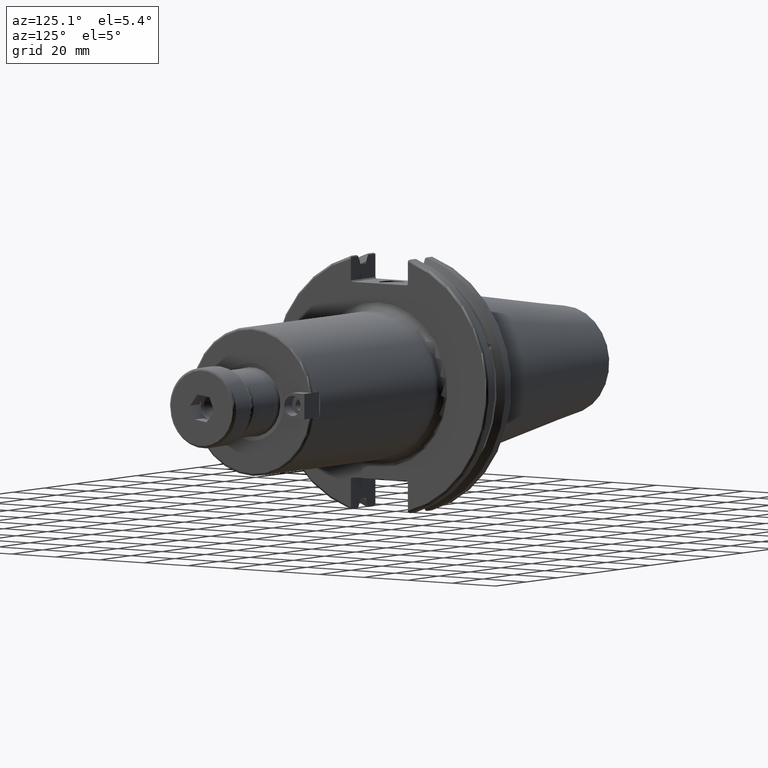
[diagram: clean part render]
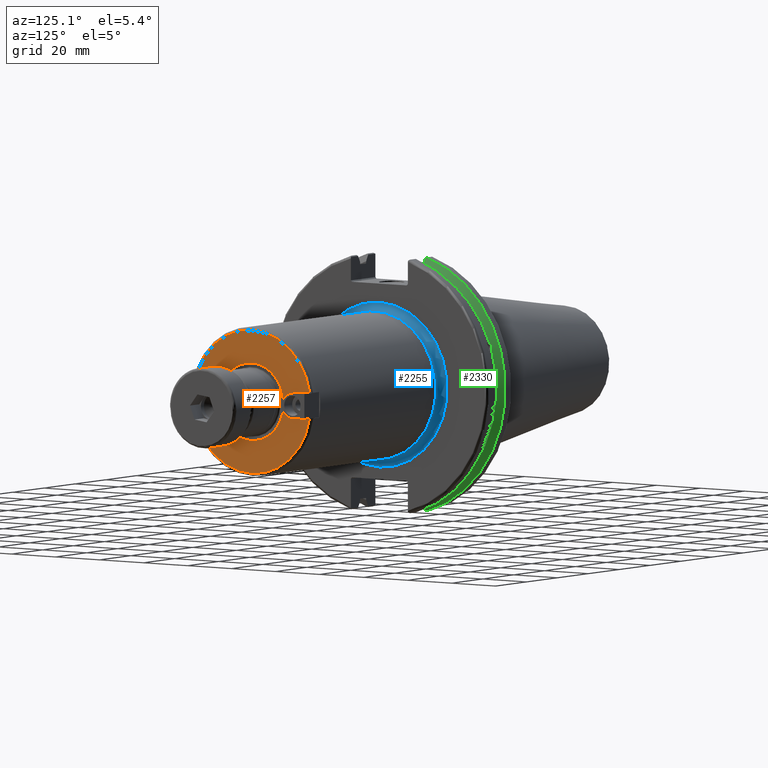
[diagram: same view with three faces highlighted in distinct colors, each labeled with its STEP entity id]
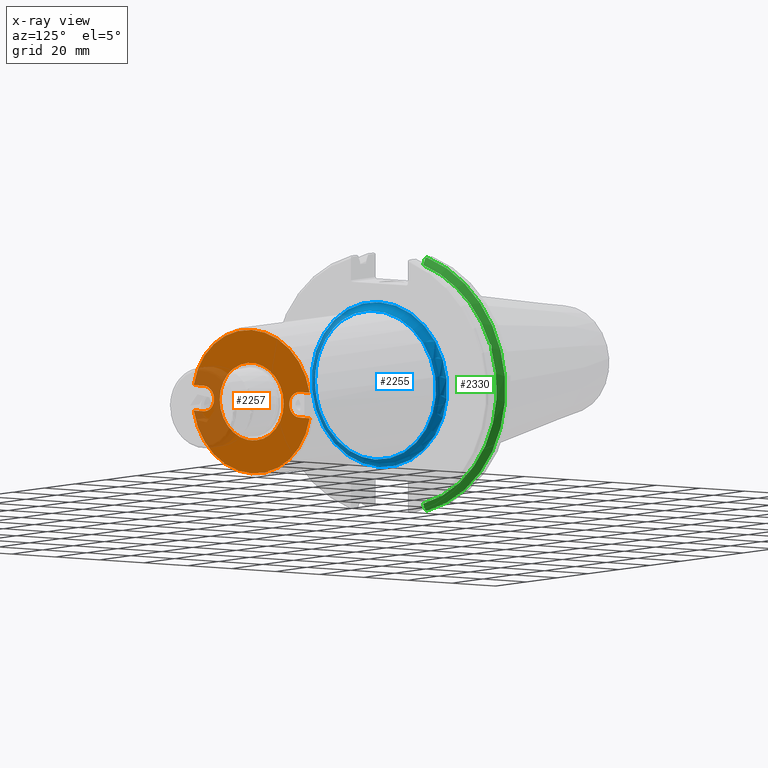
[diagram: x-ray of the same camera — body ghosted, the three highlighted faces saturated]
A machine part, auxiliary view with three faces highlighted in distinct colors.
The next image is the same camera in x-ray (body ghosted, the three faces saturated) — at least one of them is partly hidden behind the body in this view.
Their STEP definitions:

[orange] entity #2257 — the highlighted planar face has unit normal (1, 0, 0).
#74=FACE_BOUND('',#398,.T.);
#147=PLANE('',#2497);
#259=FACE_OUTER_BOUND('',#397,.T.);
#397=EDGE_LOOP('',(#1633,#1634,#1635,#1636,#1637,#1638,#1639,#1640));
#398=EDGE_LOOP('',(#1641));
#543=LINE('',#3454,#699);
#550=LINE('',#3486,#706);
#554=LINE('',#3530,#710);
#559=LINE('',#3543,#715);
#699=VECTOR('',#2752,10.);
#706=VECTOR('',#2773,10.);
#710=VECTOR('',#2799,10.);
#715=VECTOR('',#2814,10.);
#858=CIRCLE('',#2473,4.76);
#864=CIRCLE('',#2482,26.79);
#865=CIRCLE('',#2484,26.79);
#867=CIRCLE('',#2489,4.76);
#872=CIRCLE('',#2498,14.5150300316429);
#981=VERTEX_POINT('',#3441);
#983=VERTEX_POINT('',#3453);
#989=VERTEX_POINT('',#3469);
#991=VERTEX_POINT('',#3474);
#998=VERTEX_POINT('',#3503);
#999=VERTEX_POINT('',#3516);
#1000=VERTEX_POINT('',#3529);
#1003=VERTEX_POINT('',#3539);
#1017=VERTEX_POINT('',#3574);
#1210=EDGE_CURVE('',#983,#981,#543,.T.);
#1218=EDGE_CURVE('',#989,#983,#858,.T.);
#1222=EDGE_CURVE('',#991,#989,#550,.T.);
#1231=EDGE_CURVE('',#991,#998,#864,.T.);
#1234=EDGE_CURVE('',#999,#981,#865,.T.);
#1235=EDGE_CURVE('',#1000,#998,#554,.T.);
#1240=EDGE_CURVE('',#1003,#1000,#867,.T.);
#1242=EDGE_CURVE('',#999,#1003,#559,.T.);
#1257=EDGE_CURVE('',#1017,#1017,#872,.T.);
#1633=ORIENTED_EDGE('',*,*,#1210,.T.);
#1634=ORIENTED_EDGE('',*,*,#1234,.F.);
#1635=ORIENTED_EDGE('',*,*,#1242,.T.);
#1636=ORIENTED_EDGE('',*,*,#1240,.T.);
#1637=ORIENTED_EDGE('',*,*,#1235,.T.);
#1638=ORIENTED_EDGE('',*,*,#1231,.F.);
#1639=ORIENTED_EDGE('',*,*,#1222,.T.);
#1640=ORIENTED_EDGE('',*,*,#1218,.T.);
#1641=ORIENTED_EDGE('',*,*,#1257,.T.);
#2257=ADVANCED_FACE('',(#259,#74),#147,.T.);
#2473=AXIS2_PLACEMENT_3D('',#3470,#2767,#2768);
#2482=AXIS2_PLACEMENT_3D('',#3504,#2791,#2792);
#2484=AXIS2_PLACEMENT_3D('',#3527,#2795,#2796);
#2489=AXIS2_PLACEMENT_3D('',#3540,#2809,#2810);
#2497=AXIS2_PLACEMENT_3D('',#3573,#2837,#2838);
#2498=AXIS2_PLACEMENT_3D('',#3575,#2839,#2840);
#2752=DIRECTION('',(0.,-1.,1.22464679914735E-16));
#2767=DIRECTION('center_axis',(-1.,0.,0.));
#2768=DIRECTION('ref_axis',(0.,-1.22464679914735E-16,-1.));
#2773=DIRECTION('',(0.,1.,-1.22464679914735E-16));
#2791=DIRECTION('center_axis',(-1.,0.,0.));
#2792=DIRECTION('ref_axis',(0.,-1.,1.83697019872103E-16));
#2795=DIRECTION('center_axis',(-1.,0.,0.));
#2796=DIRECTION('ref_axis',(0.,-1.,1.83697019872103E-16));
#2799=DIRECTION('',(0.,1.,0.));
#2809=DIRECTION('center_axis',(-1.,0.,0.));
#2810=DIRECTION('ref_axis',(0.,0.,1.));
#2814=DIRECTION('',(0.,-1.,0.));
#2837=DIRECTION('center_axis',(1.,0.,0.));
#2838=DIRECTION('ref_axis',(0.,0.,-1.));
#2839=DIRECTION('center_axis',(-1.,0.,0.));
#2840=DIRECTION('ref_axis',(0.,1.,0.));
#3441=CARTESIAN_POINT('',(101.6,-26.3637345609456,-4.76));
#3453=CARTESIAN_POINT('',(101.6,-21.85,-4.76));
#3454=CARTESIAN_POINT('',(101.6,-4.575,-4.76));
#3469=CARTESIAN_POINT('',(101.6,-21.85,4.76));
#3470=CARTESIAN_POINT('Origin',(101.6,-21.85,2.67585325613697E-15));
#3474=CARTESIAN_POINT('',(101.6,-26.3637345609456,4.76));
#3486=CARTESIAN_POINT('',(101.6,-8.79346268450572,4.76));
#3503=CARTESIAN_POINT('',(101.6,26.3637345609456,4.76));
#3504=CARTESIAN_POINT('Origin',(101.6,0.,0.));
#3516=CARTESIAN_POINT('',(101.6,26.3637345609456,-4.76));
#3527=CARTESIAN_POINT('Origin',(101.6,0.,0.));
#3529=CARTESIAN_POINT('',(101.6,21.85,4.76));
#3530=CARTESIAN_POINT('',(101.6,17.275,4.76));
#3539=CARTESIAN_POINT('',(101.6,21.85,-4.76));
#3540=CARTESIAN_POINT('Origin',(101.6,21.85,0.));
#3543=CARTESIAN_POINT('',(101.6,21.4934626845057,-4.76));
#3573=CARTESIAN_POINT('Origin',(101.6,12.7,0.));
#3574=CARTESIAN_POINT('',(101.6,-14.5150300316429,1.77757850677791E-15));
#3575=CARTESIAN_POINT('Origin',(101.6,0.,0.));

[blue] entity #2255 — the highlighted toroidal blend (fillet) surface has major radius 30.79 mm and minor (blend) radius 3 mm.
#59=TOROIDAL_SURFACE('',#2491,30.79,3.);
#257=FACE_OUTER_BOUND('',#394,.T.);
#394=EDGE_LOOP('',(#1615,#1616,#1617,#1618,#1619));
#859=CIRCLE('',#2476,27.79);
#860=CIRCLE('',#2477,27.79);
#868=CIRCLE('',#2492,3.);
#869=CIRCLE('',#2493,30.79);
#992=VERTEX_POINT('',#3488);
#993=VERTEX_POINT('',#3490);
#1004=VERTEX_POINT('',#3545);
#1224=EDGE_CURVE('',#993,#992,#859,.T.);
#1225=EDGE_CURVE('',#992,#993,#860,.T.);
#1243=EDGE_CURVE('',#993,#1004,#868,.T.);
#1244=EDGE_CURVE('',#1004,#1004,#869,.T.);
#1615=ORIENTED_EDGE('',*,*,#1225,.T.);
#1616=ORIENTED_EDGE('',*,*,#1243,.T.);
#1617=ORIENTED_EDGE('',*,*,#1244,.T.);
#1618=ORIENTED_EDGE('',*,*,#1243,.F.);
#1619=ORIENTED_EDGE('',*,*,#1224,.T.);
#2255=ADVANCED_FACE('',(#257),#59,.F.);
#2476=AXIS2_PLACEMENT_3D('',#3491,#2777,#2778);
#2477=AXIS2_PLACEMENT_3D('',#3492,#2779,#2780);
#2491=AXIS2_PLACEMENT_3D('',#3544,#2815,#2816);
#2492=AXIS2_PLACEMENT_3D('',#3546,#2817,#2818);
#2493=AXIS2_PLACEMENT_3D('',#3547,#2819,#2820);
#2777=DIRECTION('center_axis',(-1.,0.,0.));
#2778=DIRECTION('ref_axis',(0.,-1.,-1.22464679914735E-16));
#2779=DIRECTION('center_axis',(-1.,0.,0.));
#2780=DIRECTION('ref_axis',(0.,-1.,-1.22464679914735E-16));
#2815=DIRECTION('center_axis',(-1.,0.,0.));
#2816=DIRECTION('ref_axis',(0.,0.,1.));
#2817=DIRECTION('center_axis',(0.,-1.,1.22464679914735E-16));
#2818=DIRECTION('ref_axis',(0.,-1.22464679914735E-16,-1.));
#2819=DIRECTION('center_axis',(1.,0.,0.));
#2820=DIRECTION('ref_axis',(0.,-1.,-1.22464679914735E-16));
#3488=CARTESIAN_POINT('',(22.05,-27.79,-3.40329345483049E-15));
#3490=CARTESIAN_POINT('',(22.05,-3.40329345483049E-15,-27.79));
#3491=CARTESIAN_POINT('Origin',(22.05,0.,0.));
#3492=CARTESIAN_POINT('Origin',(22.05,0.,0.));
#3544=CARTESIAN_POINT('Origin',(22.05,0.,0.));
#3545=CARTESIAN_POINT('',(19.05,-3.7706874945747E-15,-30.79));
#3546=CARTESIAN_POINT('Origin',(22.05,-3.7706874945747E-15,-30.79));
#3547=CARTESIAN_POINT('Origin',(19.05,0.,0.));

[green] entity #2330 — the highlighted conical surface has half-angle 60 deg.
#47=(
BOUNDED_CURVE()
B_SPLINE_CURVE(2,(#4256,#4257,#4258),.UNSPECIFIED.,.F.,.F.)
B_SPLINE_CURVE_WITH_KNOTS((3,3),(0.,0.275823910674931),.UNSPECIFIED.)
CURVE()
GEOMETRIC_REPRESENTATION_ITEM()
RATIONAL_B_SPLINE_CURVE((1.,1.00038235574495,1.0001287363679))
REPRESENTATION_ITEM('')
);
#52=(
BOUNDED_CURVE()
B_SPLINE_CURVE(2,(#4398,#4399,#4400),.UNSPECIFIED.,.F.,.F.)
B_SPLINE_CURVE_WITH_KNOTS((3,3),(0.,0.064824047289788),.UNSPECIFIED.)
CURVE()
GEOMETRIC_REPRESENTATION_ITEM()
RATIONAL_B_SPLINE_CURVE((1.,1.00011477674855,1.00019140645979))
REPRESENTATION_ITEM('')
);
#53=(
BOUNDED_CURVE()
B_SPLINE_CURVE(2,(#4429,#4430,#4431),.UNSPECIFIED.,.F.,.F.)
B_SPLINE_CURVE_WITH_KNOTS((3,3),(0.0558332664474718,0.331657177124507),
 .UNSPECIFIED.)
CURVE()
GEOMETRIC_REPRESENTATION_ITEM()
RATIONAL_B_SPLINE_CURVE((1.00012873637085,1.00038235575372,1.))
REPRESENTATION_ITEM('')
);
#54=(
BOUNDED_CURVE()
B_SPLINE_CURVE(2,(#4446,#4447,#4448),.UNSPECIFIED.,.F.,.F.)
B_SPLINE_CURVE_WITH_KNOTS((3,3),(0.325260944932384,0.390084992222206),
 .UNSPECIFIED.)
CURVE()
GEOMETRIC_REPRESENTATION_ITEM()
RATIONAL_B_SPLINE_CURVE((1.00019140645948,1.00011477674836,1.))
REPRESENTATION_ITEM('')
);
#121=B_SPLINE_CURVE_WITH_KNOTS('',3,(#4069,#4070,#4071,#4072,#4073,#4074,
#4075,#4076,#4077,#4078,#4079,#4080,#4081,#4082),.UNSPECIFIED.,.F.,.F.,
(4,2,2,2,2,2,4),(0.426712868358721,0.441644498666905,0.480313313223129,
0.518982127779352,0.557650942335576,0.596319756891799,0.611251387199981),
 .UNSPECIFIED.);
#332=FACE_OUTER_BOUND('',#487,.T.);
#487=EDGE_LOOP('',(#2022,#2023,#2024,#2025,#2026,#2027,#2028,#2029));
#911=CIRCLE('',#2571,46.4219772964944);
#935=CIRCLE('',#2629,49.2125);
#938=CIRCLE('',#2639,46.4219772964944);
#1079=VERTEX_POINT('',#4066);
#1080=VERTEX_POINT('',#4068);
#1092=VERTEX_POINT('',#4143);
#1121=VERTEX_POINT('',#4253);
#1122=VERTEX_POINT('',#4255);
#1143=VERTEX_POINT('',#4396);
#1149=VERTEX_POINT('',#4428);
#1150=VERTEX_POINT('',#4438);
#1342=EDGE_CURVE('',#1080,#1079,#121,.T.);
#1358=EDGE_CURVE('',#1080,#1092,#911,.T.);
#1399=EDGE_CURVE('',#1122,#1121,#47,.T.);
#1434=EDGE_CURVE('',#1143,#1121,#52,.T.);
#1448=EDGE_CURVE('',#1149,#1092,#53,.T.);
#1453=EDGE_CURVE('',#1143,#1150,#935,.T.);
#1455=EDGE_CURVE('',#1149,#1150,#54,.T.);
#1460=EDGE_CURVE('',#1122,#1079,#938,.T.);
#2022=ORIENTED_EDGE('',*,*,#1342,.T.);
#2023=ORIENTED_EDGE('',*,*,#1460,.F.);
#2024=ORIENTED_EDGE('',*,*,#1399,.T.);
#2025=ORIENTED_EDGE('',*,*,#1434,.F.);
#2026=ORIENTED_EDGE('',*,*,#1453,.T.);
#2027=ORIENTED_EDGE('',*,*,#1455,.F.);
#2028=ORIENTED_EDGE('',*,*,#1448,.T.);
#2029=ORIENTED_EDGE('',*,*,#1358,.F.);
#2234=CONICAL_SURFACE('',#2638,47.8172386482472,1.0471975511966);
#2330=ADVANCED_FACE('',(#332),#2234,.T.);
#2571=AXIS2_PLACEMENT_3D('',#4144,#3016,#3017);
#2629=AXIS2_PLACEMENT_3D('',#4440,#3179,#3180);
#2638=AXIS2_PLACEMENT_3D('',#4458,#3200,#3201);
#2639=AXIS2_PLACEMENT_3D('',#4459,#3202,#3203);
#3016=DIRECTION('center_axis',(1.,0.,0.));
#3017=DIRECTION('ref_axis',(0.,0.,-1.));
#3179=DIRECTION('center_axis',(1.,0.,0.));
#3180=DIRECTION('ref_axis',(0.,0.,-1.));
#3200=DIRECTION('center_axis',(-1.,0.,0.));
#3201=DIRECTION('ref_axis',(0.,1.,0.));
#3202=DIRECTION('center_axis',(1.,0.,0.));
#3203=DIRECTION('ref_axis',(0.,0.,-1.));
#4066=CARTESIAN_POINT('',(9.21200000000001,43.9096390749305,15.0646464421033));
#4068=CARTESIAN_POINT('',(9.21200000000001,43.3201030900029,16.6843832486479));
#4069=CARTESIAN_POINT('Ctrl Pts',(9.212,43.3201030900029,16.6843832486479));
#4070=CARTESIAN_POINT('Ctrl Pts',(9.19501843903392,43.3613106941341,16.6592273018006));
#4071=CARTESIAN_POINT('Ctrl Pts',(9.17898675403323,43.4012416983557,16.6326763251437));
#4072=CARTESIAN_POINT('Ctrl Pts',(9.12528673845038,43.539103734322,16.5325130832406));
#4073=CARTESIAN_POINT('Ctrl Pts',(9.08911610663556,43.6406982153491,16.441180795372));
#4074=CARTESIAN_POINT('Ctrl Pts',(9.03980868251976,43.8110833825827,16.2291323464527));
#4075=CARTESIAN_POINT('Ctrl Pts',(9.027,43.8794096049168,16.10796730316));
#4076=CARTESIAN_POINT('Ctrl Pts',(9.027,43.9675796948952,15.8657219718732));
#4077=CARTESIAN_POINT('Ctrl Pts',(9.03980868251976,43.9931221605125,15.7289849146254));
#4078=CARTESIAN_POINT('Ctrl Pts',(9.08911610663556,43.9989016655819,15.4570249042867));
#4079=CARTESIAN_POINT('Ctrl Pts',(9.12528673845038,43.9797830409458,15.3217566390708));
#4080=CARTESIAN_POINT('Ctrl Pts',(9.17898675403322,43.9385582852181,15.1564111356409));
#4081=CARTESIAN_POINT('Ctrl Pts',(9.19501843903391,43.9250360001461,15.1104047527575));
#4082=CARTESIAN_POINT('Ctrl Pts',(9.21199999999999,43.9096390749305,15.0646464421033));
#4143=CARTESIAN_POINT('',(9.21200000000001,12.95,44.5791147973604));
#4144=CARTESIAN_POINT('Origin',(9.21200000000001,0.,0.));
#4253=CARTESIAN_POINT('',(7.87928960562424,12.95,-46.9780755322918));
#4255=CARTESIAN_POINT('',(9.21200000000001,12.95,-44.5791147973604));
#4256=CARTESIAN_POINT('Ctrl Pts',(9.21200000000001,12.95,-44.5791147973604));
#4257=CARTESIAN_POINT('Ctrl Pts',(8.5631044905565,12.95,-45.7494966802185));
#4258=CARTESIAN_POINT('Ctrl Pts',(7.87928960562424,12.95,-46.9780755322917));
#4396=CARTESIAN_POINT('',(7.60089096595127,13.4317035994433,-47.3440544806494));
#4398=CARTESIAN_POINT('Ctrl Pts',(7.60089096595127,13.4317035994433,-47.3440544806494));
#4399=CARTESIAN_POINT('Ctrl Pts',(7.74116896663821,13.1896660169966,-47.1601640966264));
#4400=CARTESIAN_POINT('Ctrl Pts',(7.87928960562424,12.95,-46.9780755322918));
#4428=CARTESIAN_POINT('',(7.87928960562422,12.95,46.9780755322917));
#4429=CARTESIAN_POINT('Ctrl Pts',(7.87928960562422,12.95,46.9780755322917));
#4430=CARTESIAN_POINT('Ctrl Pts',(8.5631044905765,12.95,45.7494966801825));
#4431=CARTESIAN_POINT('Ctrl Pts',(9.21200000000001,12.95,44.5791147973604));
#4438=CARTESIAN_POINT('',(7.60089096595127,13.4317035994433,47.3440544806494));
#4440=CARTESIAN_POINT('Origin',(7.60089096595127,0.,0.));
#4446=CARTESIAN_POINT('Ctrl Pts',(7.87928960562422,12.95,46.9780755322917));
#4447=CARTESIAN_POINT('Ctrl Pts',(7.74116896663815,13.1896660169967,47.1601640966265));
#4448=CARTESIAN_POINT('Ctrl Pts',(7.60089096595127,13.4317035994433,47.3440544806494));
#4458=CARTESIAN_POINT('Origin',(8.40644548297563,0.,0.));
#4459=CARTESIAN_POINT('Origin',(9.21200000000001,0.,0.));